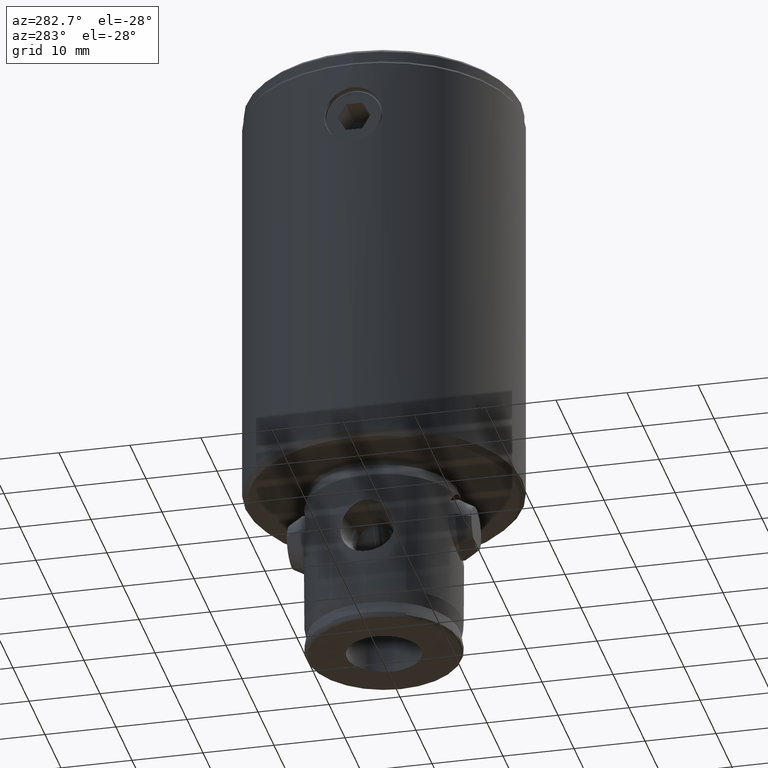
[diagram: clean part render]
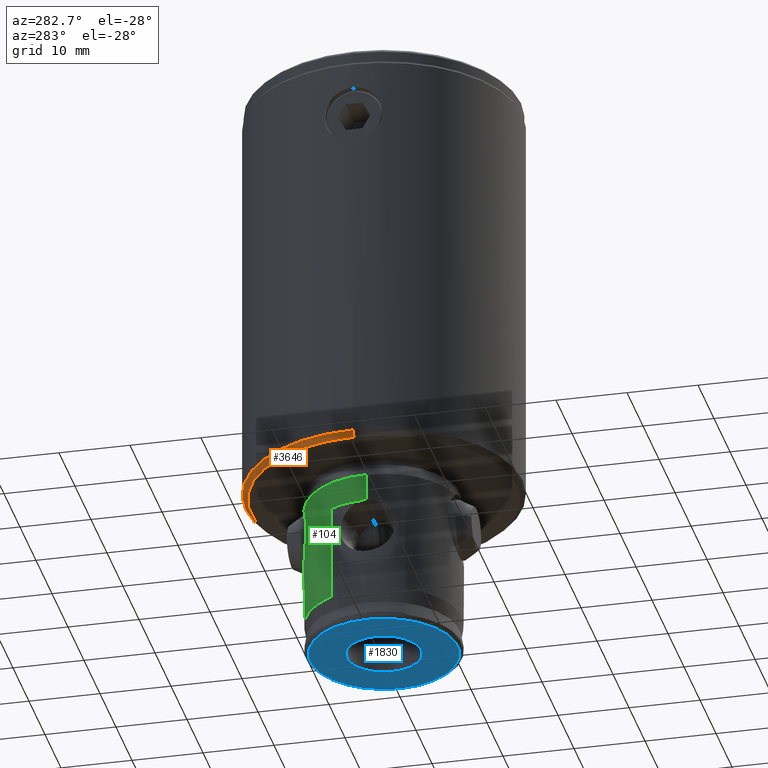
[diagram: same view with three faces highlighted in distinct colors, each labeled with its STEP entity id]
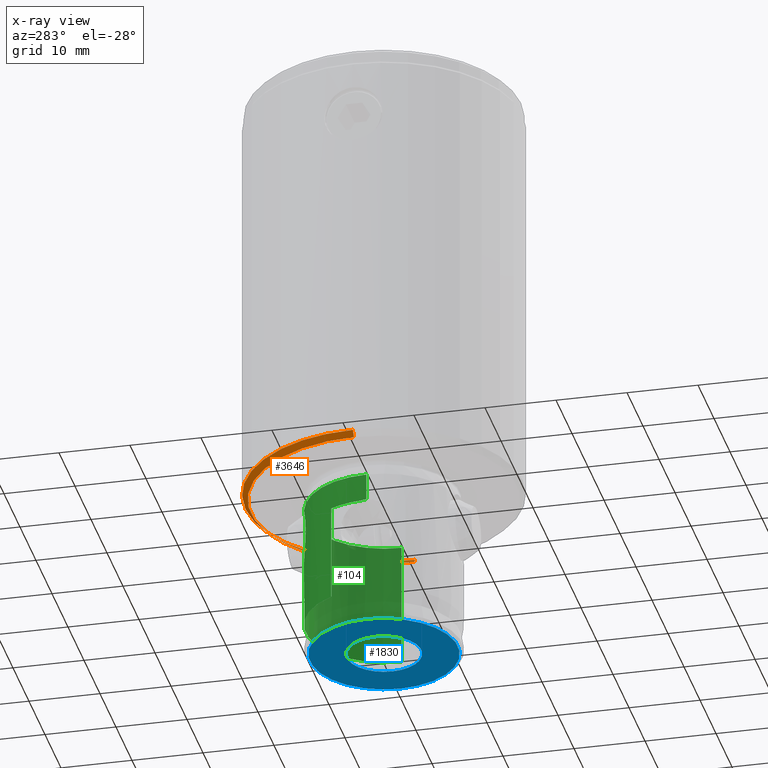
[diagram: x-ray of the same camera — body ghosted, the three highlighted faces saturated]
A machine part, auxiliary view with three faces highlighted in distinct colors.
The next image is the same camera in x-ray (body ghosted, the three faces saturated) — at least one of them is partly hidden behind the body in this view.
Their STEP definitions:

[orange] entity #3646 — the highlighted conical surface has half-angle 45 deg.
#240 = CARTESIAN_POINT ( 'NONE',  ( 18.75000000000000000, 2.296212748401287200E-015, 60.00000000000000000 ) ) ;
#295 = ORIENTED_EDGE ( 'NONE', *, *, #3892, .F. ) ;
#319 = LINE ( 'NONE', #240, #3121 ) ;
#345 = DIRECTION ( 'NONE',  ( -1.000000000000000000, 0.0000000000000000000, 0.0000000000000000000 ) ) ;
#462 = DIRECTION ( 'NONE',  ( -0.7071067811865410200, 0.0000000000000000000, -0.7071067811865540100 ) ) ;
#733 = AXIS2_PLACEMENT_3D ( 'NONE', #1792, #3261, #345 ) ;
#751 = VERTEX_POINT ( 'NONE', #2579 ) ;
#897 = CARTESIAN_POINT ( 'NONE',  ( 19.50000000000000000, 2.388061258337338900E-015, 59.24999999999998600 ) ) ;
#1018 = EDGE_CURVE ( 'NONE', #2460, #2475, #2023, .T. ) ;
#1129 = AXIS2_PLACEMENT_3D ( 'NONE', #4130, #1930, #4503 ) ;
#1328 = DIRECTION ( 'NONE',  ( 0.7071067811865410200, 8.659560562354854000E-017, -0.7071067811865540100 ) ) ;
#1616 = CARTESIAN_POINT ( 'NONE',  ( 18.75000000000000000, 2.342137003369313300E-015, 60.00000000000000000 ) ) ;
#1792 = CARTESIAN_POINT ( 'NONE',  ( 0.0000000000000000000, 0.0000000000000000000, 60.00000000000000000 ) ) ;
#1930 = DIRECTION ( 'NONE',  ( -0.0000000000000000000, -0.0000000000000000000, -1.000000000000000000 ) ) ;
#1957 = DIRECTION ( 'NONE',  ( 1.000000000000000000, 0.0000000000000000000, 0.0000000000000000000 ) ) ;
#2023 = CIRCLE ( 'NONE', #4020, 18.75000000000000000 ) ;
#2106 = ORIENTED_EDGE ( 'NONE', *, *, #4699, .T. ) ;
#2210 = CONICAL_SURFACE ( 'NONE', #733, 18.75000000000000000, 0.7853981633974391800 ) ;
#2303 = EDGE_CURVE ( 'NONE', #2475, #751, #3217, .T. ) ;
#2460 = VERTEX_POINT ( 'NONE', #1616 ) ;
#2475 = VERTEX_POINT ( 'NONE', #4574 ) ;
#2579 = CARTESIAN_POINT ( 'NONE',  ( -19.50000000000000000, 0.0000000000000000000, 59.24999999999998600 ) ) ;
#2790 = EDGE_LOOP ( 'NONE', ( #2957, #2106, #295, #3197 ) ) ;
#2957 = ORIENTED_EDGE ( 'NONE', *, *, #1018, .F. ) ;
#2989 = CARTESIAN_POINT ( 'NONE',  ( -18.75000000000000000, 0.0000000000000000000, 60.00000000000000000 ) ) ;
#3061 = CIRCLE ( 'NONE', #1129, 19.50000000000000000 ) ;
#3104 = CARTESIAN_POINT ( 'NONE',  ( 0.0000000000000000000, 0.0000000000000000000, 60.00000000000000000 ) ) ;
#3112 = VECTOR ( 'NONE', #462, 1000.000000000000000 ) ;
#3121 = VECTOR ( 'NONE', #1328, 1000.000000000000000 ) ;
#3186 = VERTEX_POINT ( 'NONE', #897 ) ;
#3193 = FACE_OUTER_BOUND ( 'NONE', #2790, .T. ) ;
#3197 = ORIENTED_EDGE ( 'NONE', *, *, #2303, .F. ) ;
#3217 = LINE ( 'NONE', #2989, #3112 ) ;
#3261 = DIRECTION ( 'NONE',  ( 0.0000000000000000000, 0.0000000000000000000, -1.000000000000000000 ) ) ;
#3554 = DIRECTION ( 'NONE',  ( 0.0000000000000000000, 0.0000000000000000000, 1.000000000000000000 ) ) ;
#3646 = ADVANCED_FACE ( 'NONE', ( #3193 ), #2210, .T. ) ;
#3892 = EDGE_CURVE ( 'NONE', #751, #3186, #3061, .T. ) ;
#4020 = AXIS2_PLACEMENT_3D ( 'NONE', #3104, #3554, #1957 ) ;
#4130 = CARTESIAN_POINT ( 'NONE',  ( 0.0000000000000000000, 0.0000000000000000000, 59.24999999999998600 ) ) ;
#4503 = DIRECTION ( 'NONE',  ( 1.000000000000000000, 0.0000000000000000000, 0.0000000000000000000 ) ) ;
#4574 = CARTESIAN_POINT ( 'NONE',  ( -18.75000000000000000, 0.0000000000000000000, 60.00000000000000000 ) ) ;
#4699 = EDGE_CURVE ( 'NONE', #2460, #3186, #319, .T. ) ;

[blue] entity #1830 — the highlighted planar face has unit normal (-0, 0, -1).
#168 = VERTEX_POINT ( 'NONE', #4489 ) ;
#339 = ORIENTED_EDGE ( 'NONE', *, *, #3920, .F. ) ;
#424 = AXIS2_PLACEMENT_3D ( 'NONE', #3131, #955, #3516 ) ;
#497 = CARTESIAN_POINT ( 'NONE',  ( 0.0000000000000000000, 0.0000000000000000000, 83.99999999999998600 ) ) ;
#542 = DIRECTION ( 'NONE',  ( 0.0000000000000000000, 0.0000000000000000000, 1.000000000000000000 ) ) ;
#635 = CARTESIAN_POINT ( 'NONE',  ( 10.40839202169003000, 1.310885938212720900E-015, 83.99999999999998600 ) ) ;
#670 = CARTESIAN_POINT ( 'NONE',  ( -10.40839202169003000, 0.0000000000000000000, 83.99999999999998600 ) ) ;
#780 = CIRCLE ( 'NONE', #1387, 5.249999999999988500 ) ;
#859 = DIRECTION ( 'NONE',  ( 1.000000000000000000, 0.0000000000000000000, 0.0000000000000000000 ) ) ;
#934 = DIRECTION ( 'NONE',  ( 1.000000000000000000, 0.0000000000000000000, 0.0000000000000000000 ) ) ;
#955 = DIRECTION ( 'NONE',  ( 0.0000000000000000000, 0.0000000000000000000, 1.000000000000000000 ) ) ;
#957 = AXIS2_PLACEMENT_3D ( 'NONE', #2717, #542, #3075 ) ;
#1079 = VERTEX_POINT ( 'NONE', #670 ) ;
#1252 = ORIENTED_EDGE ( 'NONE', *, *, #2736, .F. ) ;
#1387 = AXIS2_PLACEMENT_3D ( 'NONE', #497, #3028, #859 ) ;
#1639 = CARTESIAN_POINT ( 'NONE',  ( 0.0000000000000000000, 0.0000000000000000000, 83.99999999999998600 ) ) ;
#1743 = FACE_OUTER_BOUND ( 'NONE', #2755, .T. ) ;
#1830 = ADVANCED_FACE ( 'NONE', ( #2924, #1743 ), #2752, .T. ) ;
#1993 = DIRECTION ( 'NONE',  ( 1.000000000000000000, 0.0000000000000000000, 0.0000000000000000000 ) ) ;
#2002 = ORIENTED_EDGE ( 'NONE', *, *, #2005, .T. ) ;
#2005 = EDGE_CURVE ( 'NONE', #1079, #2811, #3765, .T. ) ;
#2289 = VERTEX_POINT ( 'NONE', #4336 ) ;
#2439 = EDGE_CURVE ( 'NONE', #2811, #1079, #4082, .T. ) ;
#2717 = CARTESIAN_POINT ( 'NONE',  ( 0.0000000000000000000, 0.0000000000000000000, 83.99999999999998600 ) ) ;
#2736 = EDGE_CURVE ( 'NONE', #2289, #168, #4420, .T. ) ;
#2752 = PLANE ( 'NONE',  #2758 ) ;
#2755 = EDGE_LOOP ( 'NONE', ( #2002, #3231 ) ) ;
#2758 = AXIS2_PLACEMENT_3D ( 'NONE', #4218, #3110, #934 ) ;
#2811 = VERTEX_POINT ( 'NONE', #635 ) ;
#2924 = FACE_BOUND ( 'NONE', #3203, .T. ) ;
#3028 = DIRECTION ( 'NONE',  ( 0.0000000000000000000, 0.0000000000000000000, 1.000000000000000000 ) ) ;
#3075 = DIRECTION ( 'NONE',  ( 1.000000000000000000, 0.0000000000000000000, 0.0000000000000000000 ) ) ;
#3110 = DIRECTION ( 'NONE',  ( 0.0000000000000000000, 0.0000000000000000000, 1.000000000000000000 ) ) ;
#3131 = CARTESIAN_POINT ( 'NONE',  ( 0.0000000000000000000, 0.0000000000000000000, 83.99999999999998600 ) ) ;
#3203 = EDGE_LOOP ( 'NONE', ( #339, #1252 ) ) ;
#3231 = ORIENTED_EDGE ( 'NONE', *, *, #2439, .T. ) ;
#3516 = DIRECTION ( 'NONE',  ( 1.000000000000000000, 0.0000000000000000000, 0.0000000000000000000 ) ) ;
#3765 = CIRCLE ( 'NONE', #957, 10.40839202169003000 ) ;
#3920 = EDGE_CURVE ( 'NONE', #168, #2289, #780, .T. ) ;
#4026 = AXIS2_PLACEMENT_3D ( 'NONE', #1639, #4201, #1993 ) ;
#4082 = CIRCLE ( 'NONE', #4026, 10.40839202169003000 ) ;
#4201 = DIRECTION ( 'NONE',  ( 0.0000000000000000000, 0.0000000000000000000, 1.000000000000000000 ) ) ;
#4218 = CARTESIAN_POINT ( 'NONE',  ( 0.0000000000000000000, 0.0000000000000000000, 83.99999999999998600 ) ) ;
#4336 = CARTESIAN_POINT ( 'NONE',  ( -5.249999999999988500, 6.429395695523590300E-016, 83.99999999999998600 ) ) ;
#4420 = CIRCLE ( 'NONE', #424, 5.249999999999988500 ) ;
#4489 = CARTESIAN_POINT ( 'NONE',  ( 5.249999999999988500, 0.0000000000000000000, 83.99999999999998600 ) ) ;

[green] entity #104 — the highlighted cylindrical surface (partial cylindrical patch) has radius 11 mm, axis along (0, 0, 1).
#31 = VECTOR ( 'NONE', #2734, 1000.000000000000000 ) ;
#33 = CARTESIAN_POINT ( 'NONE',  ( -4.473245270091969600, 10.05075226166034200, 64.82087978708200600 ) ) ;
#39 = VERTEX_POINT ( 'NONE', #1488 ) ;
#89 = CARTESIAN_POINT ( 'NONE',  ( -2.439577906776702900, 10.72837784936262100, 70.35832153894530400 ) ) ;
#104 = ADVANCED_FACE ( 'NONE', ( #1779 ), #702, .T. ) ;
#105 = CARTESIAN_POINT ( 'NONE',  ( -4.556288919254663000, 10.01201411918462400, 65.33335830747059000 ) ) ;
#140 = CARTESIAN_POINT ( 'NONE',  ( -2.631756059151182800, 10.68053650549076900, 61.79524911219963500 ) ) ;
#164 = CARTESIAN_POINT ( 'NONE',  ( 10.99695241310366000, 0.2973758084466155400, 65.65252359537387900 ) ) ;
#189 = CARTESIAN_POINT ( 'NONE',  ( 0.0000000000000000000, 0.0000000000000000000, 79.50000000000000000 ) ) ;
#287 = EDGE_CURVE ( 'NONE', #1674, #4340, #2337, .T. ) ;
#301 = CARTESIAN_POINT ( 'NONE',  ( 4.563456895335181500, 10.00874126988598100, 65.61082701546479300 ) ) ;
#316 = CARTESIAN_POINT ( 'NONE',  ( 1.997614349368690600, 10.81936557880324500, 70.63487722509111700 ) ) ;
#419 = CARTESIAN_POINT ( 'NONE',  ( -11.00000000000001100, 0.0000000000000000000, 79.50000000000000000 ) ) ;
#477 = CARTESIAN_POINT ( 'NONE',  ( -3.031026824551829300, 10.57602324519832100, 69.85865004430114300 ) ) ;
#494 = CARTESIAN_POINT ( 'NONE',  ( -3.364302705878028400, 10.47445986397923300, 62.50904561711463700 ) ) ;
#535 = ORIENTED_EDGE ( 'NONE', *, *, #1798, .F. ) ;
#564 = DIRECTION ( 'NONE',  ( 1.000000000000000000, 0.0000000000000000000, 0.0000000000000000000 ) ) ;
#603 = ORIENTED_EDGE ( 'NONE', *, *, #3956, .T. ) ;
#647 = CARTESIAN_POINT ( 'NONE',  ( 0.5215098820343713200, 10.99061502377314200, 71.11955586624657100 ) ) ;
#675 = CARTESIAN_POINT ( 'NONE',  ( 4.563266063690037700, 10.00887851290144000, 66.39229617508529200 ) ) ;
#687 = CARTESIAN_POINT ( 'NONE',  ( 1.287409194248698900, 10.92711111080013200, 70.94451240562401000 ) ) ;
#689 = EDGE_CURVE ( 'NONE', #4340, #3499, #2779, .T. ) ;
#702 = CYLINDRICAL_SURFACE ( 'NONE', #2060, 11.00000000000000000 ) ;
#716 = CARTESIAN_POINT ( 'NONE',  ( 11.00000000000000000, 3.704076008921244500E-018, 65.64336602338819700 ) ) ;
#749 = VERTEX_POINT ( 'NONE', #419 ) ;
#764 = CARTESIAN_POINT ( 'NONE',  ( -4.523525409397690200, 10.02782361534787000, 66.90425269670879500 ) ) ;
#789 = ORIENTED_EDGE ( 'NONE', *, *, #1512, .T. ) ;
#802 = CARTESIAN_POINT ( 'NONE',  ( -3.940109958291326400, 10.27106975102746700, 68.61867348586359600 ) ) ;
#834 = CARTESIAN_POINT ( 'NONE',  ( -0.2618421428205383600, 11.00000000000000400, 71.14489291724395100 ) ) ;
#835 = EDGE_CURVE ( 'NONE', #1371, #3318, #937, .T. ) ;
#858 = CARTESIAN_POINT ( 'NONE',  ( -3.017439004901628900, 10.57959847964885100, 62.12807360721578900 ) ) ;
#937 = B_SPLINE_CURVE_WITH_KNOTS ( 'NONE', 3,
 ( #1572, #834, #2296, #3739, #2667, #3389, #4150, #89, #4109, #477, #1542, #2205, #3410, #802, #3756, #3027, #4129, #764, #2647, #105, #33, #2575, #2971, #1222, #3792, #1890, #494, #858, #2322, #140 ),
 .UNSPECIFIED., .F., .F.,
 ( 4, 2, 2, 2, 2, 2, 2, 2, 2, 2, 2, 2, 2, 2, 4 ),
 ( 0.01899740961911089800, 0.01977558630565579400, 0.02055376299220068600, 0.02133193967874558200, 0.02211011636529047800, 0.02288829305183537300, 0.02366646973838026600, 0.02444464642492516500, 0.02522282311147006100, 0.02677917648455989000, 0.02833552985764972400, 0.02911370654419464000, 0.02989188323073955400, 0.03067005991728447000, 0.03144823660382938700 ),
 .UNSPECIFIED. ) ;
#1034 = CARTESIAN_POINT ( 'NONE',  ( 4.456514239896857400, 10.05706001590339800, 67.17111715330060000 ) ) ;
#1107 = LINE ( 'NONE', #2367, #31 ) ;
#1114 = CARTESIAN_POINT ( 'NONE',  ( 10.98515707845205500, 0.5896767837130771900, 65.68828066599464000 ) ) ;
#1214 = CARTESIAN_POINT ( 'NONE',  ( 11.00000000000000000, 3.704076008921244500E-018, 65.64336602338819700 ) ) ;
#1222 = CARTESIAN_POINT ( 'NONE',  ( -3.931501398514059000, 10.27409901670120200, 63.36525342321139200 ) ) ;
#1371 = VERTEX_POINT ( 'NONE', #2732 ) ;
#1373 = VERTEX_POINT ( 'NONE', #1988 ) ;
#1403 = CARTESIAN_POINT ( 'NONE',  ( 4.245831230444319500, 10.14810951136943200, 67.92085756956620900 ) ) ;
#1488 = CARTESIAN_POINT ( 'NONE',  ( 9.666307464590612900, 5.250000000000000900, 79.50000000000000000 ) ) ;
#1512 = EDGE_CURVE ( 'NONE', #39, #3499, #3890, .T. ) ;
#1542 = CARTESIAN_POINT ( 'NONE',  ( -3.207230191136127000, 10.52343060633346600, 69.67327376362330000 ) ) ;
#1572 = CARTESIAN_POINT ( 'NONE',  ( -5.705521081681208000E-015, 11.00000000000003000, 71.14489291724400700 ) ) ;
#1627 = VERTEX_POINT ( 'NONE', #3606 ) ;
#1634 = AXIS2_PLACEMENT_3D ( 'NONE', #1995, #4577, #2373 ) ;
#1645 = CARTESIAN_POINT ( 'NONE',  ( 0.0000000000000000000, 0.0000000000000000000, 83.99999999999998600 ) ) ;
#1648 = VECTOR ( 'NONE', #2298, 1000.000000000000000 ) ;
#1674 = VERTEX_POINT ( 'NONE', #716 ) ;
#1731 = CARTESIAN_POINT ( 'NONE',  ( 9.666307464590600400, 5.250000000000000900, 83.99999999999998600 ) ) ;
#1751 = CARTESIAN_POINT ( 'NONE',  ( 3.949324296229815600, 10.27096629488168300, 63.35834774628215600 ) ) ;
#1763 = CARTESIAN_POINT ( 'NONE',  ( 3.934151967783729600, 10.27337308035872500, 68.63015476040924100 ) ) ;
#1779 = FACE_OUTER_BOUND ( 'NONE', #4732, .T. ) ;
#1798 = EDGE_CURVE ( 'NONE', #749, #3924, #1107, .T. ) ;
#1812 = CIRCLE ( 'NONE', #4003, 11.00000000000000000 ) ;
#1829 = CARTESIAN_POINT ( 'NONE',  ( 11.00000000000000000, 0.1482946709201480900, 65.64336602338818200 ) ) ;
#1890 = CARTESIAN_POINT ( 'NONE',  ( -3.523644565577772600, 10.42144076689737300, 62.71470832381930200 ) ) ;
#1988 = CARTESIAN_POINT ( 'NONE',  ( 11.00000000000000000, 1.347111479062088400E-015, 61.79524911219963500 ) ) ;
#1995 = CARTESIAN_POINT ( 'NONE',  ( 0.0000000000000000000, 0.0000000000000000000, 61.79524911219963500 ) ) ;
#2000 = DIRECTION ( 'NONE',  ( 0.0000000000000000000, 0.0000000000000000000, -1.000000000000000000 ) ) ;
#2060 = AXIS2_PLACEMENT_3D ( 'NONE', #1645, #2000, #4430 ) ;
#2073 = CIRCLE ( 'NONE', #3705, 11.00000000000001100 ) ;
#2094 = CARTESIAN_POINT ( 'NONE',  ( 2.631756059151177900, 10.68053650549077300, 61.79524911219963500 ) ) ;
#2108 = CARTESIAN_POINT ( 'NONE',  ( 4.398139480298800300, 10.08281298249147900, 64.57720161405454500 ) ) ;
#2113 = CARTESIAN_POINT ( 'NONE',  ( 0.0000000000000000000, 0.0000000000000000000, 61.79524911219963500 ) ) ;
#2120 = CARTESIAN_POINT ( 'NONE',  ( 3.217877989432171000, 10.52638077028903900, 69.69315712104311400 ) ) ;
#2145 = CARTESIAN_POINT ( 'NONE',  ( -5.705521081681208000E-015, 11.00000000000003000, 71.14489291724400700 ) ) ;
#2205 = CARTESIAN_POINT ( 'NONE',  ( -3.530986450189559800, 10.41926350150665900, 69.27555727347930800 ) ) ;
#2208 = DIRECTION ( 'NONE',  ( 1.000000000000000000, 0.0000000000000000000, 0.0000000000000000000 ) ) ;
#2296 = CARTESIAN_POINT ( 'NONE',  ( -0.5265045371712497900, 10.99037514723365100, 71.11890431623513100 ) ) ;
#2298 = DIRECTION ( 'NONE',  ( 0.0000000000000000000, 0.0000000000000000000, -1.000000000000000000 ) ) ;
#2322 = CARTESIAN_POINT ( 'NONE',  ( -2.831249313779868900, 10.63138002525600400, 61.95359325727652300 ) ) ;
#2337 = B_SPLINE_CURVE_WITH_KNOTS ( 'NONE', 3,
 ( #1214, #1829, #164, #1114, #3014, #3396 ),
 .UNSPECIFIED., .F., .F.,
 ( 4, 2, 4 ),
 ( 0.004081942113363981300, 0.004520058541744880300, 0.004958174970125779300 ),
 .UNSPECIFIED. ) ;
#2367 = CARTESIAN_POINT ( 'NONE',  ( -11.00000000000000000, 0.0000000000000000000, 83.99999999999998600 ) ) ;
#2373 = DIRECTION ( 'NONE',  ( 1.000000000000000000, 0.0000000000000000000, 0.0000000000000000000 ) ) ;
#2484 = CARTESIAN_POINT ( 'NONE',  ( 4.539658018418657900, 10.01965908383428600, 65.34714032155174800 ) ) ;
#2493 = DIRECTION ( 'NONE',  ( 1.000000000000000000, 0.0000000000000000000, 0.0000000000000000000 ) ) ;
#2499 = CARTESIAN_POINT ( 'NONE',  ( 2.431862253712104400, 10.73010627140134000, 70.36368284000693100 ) ) ;
#2575 = CARTESIAN_POINT ( 'NONE',  ( -4.244305899378211700, 10.14853454940273100, 64.07480463891870700 ) ) ;
#2639 = EDGE_CURVE ( 'NONE', #39, #749, #2073, .T. ) ;
#2647 = CARTESIAN_POINT ( 'NONE',  ( -4.581722753789215100, 10.00040059427047000, 66.38819712467231700 ) ) ;
#2667 = CARTESIAN_POINT ( 'NONE',  ( -1.287337657218266900, 10.92716664691081300, 70.94468426403092600 ) ) ;
#2668 = CARTESIAN_POINT ( 'NONE',  ( 0.0000000000000000000, 0.0000000000000000000, 65.74999999999998600 ) ) ;
#2732 = CARTESIAN_POINT ( 'NONE',  ( -5.705521081681208000E-015, 11.00000000000003000, 71.14489291724400700 ) ) ;
#2734 = DIRECTION ( 'NONE',  ( 0.0000000000000000000, 0.0000000000000000000, -1.000000000000000000 ) ) ;
#2735 = DIRECTION ( 'NONE',  ( 0.0000000000000000000, 0.0000000000000000000, 1.000000000000000000 ) ) ;
#2760 = CARTESIAN_POINT ( 'NONE',  ( -11.00000000000000000, 0.0000000000000000000, 61.79524911219963500 ) ) ;
#2779 = CIRCLE ( 'NONE', #2878, 11.00000000000000000 ) ;
#2847 = CARTESIAN_POINT ( 'NONE',  ( 4.575055220180286300, 10.00344492539455900, 66.13232151146900200 ) ) ;
#2856 = CARTESIAN_POINT ( 'NONE',  ( 1.769227708181933600, 10.85951255709984100, 70.75170247918974600 ) ) ;
#2869 = EDGE_CURVE ( 'NONE', #1627, #1371, #2956, .T. ) ;
#2878 = AXIS2_PLACEMENT_3D ( 'NONE', #2668, #4505, #2208 ) ;
#2956 = B_SPLINE_CURVE_WITH_KNOTS ( 'NONE', 3,
 ( #2094, #4673, #3948, #1751, #4320, #2108, #4686, #2484, #301, #2847, #675, #3212, #1034, #3600, #1403, #3960, #1763, #4339, #2120, #4700, #2499, #316, #2856, #687, #3226, #647, #4359, #2145 ),
 .UNSPECIFIED., .F., .F.,
 ( 4, 2, 2, 2, 2, 2, 2, 2, 2, 2, 2, 2, 2, 4 ),
 ( 0.006512075965532788300, 0.008072742672230031100, 0.009633409378927272300, 0.01041374273227591400, 0.01119407608562455300, 0.01197440943897319600, 0.01275474279232183600, 0.01353507614567047600, 0.01431540949901911900, 0.01587607620571639500, 0.01665640955906502000, 0.01743674291241364600, 0.01821707626576227200, 0.01899740961911089800 ),
 .UNSPECIFIED. ) ;
#2971 = CARTESIAN_POINT ( 'NONE',  ( -4.150131297949402900, 10.18774872389771100, 63.83060249311668600 ) ) ;
#3014 = CARTESIAN_POINT ( 'NONE',  ( 10.97641667811767300, 0.7339628926875316800, 65.71485859215916000 ) ) ;
#3027 = CARTESIAN_POINT ( 'NONE',  ( -4.249271921361354600, 10.14666545479236100, 67.91123467877443400 ) ) ;
#3212 = CARTESIAN_POINT ( 'NONE',  ( 4.504324806308031400, 10.03554205279033900, 66.91069953726953700 ) ) ;
#3226 = CARTESIAN_POINT ( 'NONE',  ( 1.032445923629996800, 10.95443501841272700, 71.02011995632763300 ) ) ;
#3318 = VERTEX_POINT ( 'NONE', #3723 ) ;
#3389 = CARTESIAN_POINT ( 'NONE',  ( -1.773316469175237900, 10.85889303166783600, 70.74992185436725800 ) ) ;
#3396 = CARTESIAN_POINT ( 'NONE',  ( 10.96502996948563800, 0.8764232814576522500, 65.74999999999998600 ) ) ;
#3410 = CARTESIAN_POINT ( 'NONE',  ( -3.679184457333146700, 10.36739803628740700, 69.06171016214837300 ) ) ;
#3499 = VERTEX_POINT ( 'NONE', #4242 ) ;
#3523 = ORIENTED_EDGE ( 'NONE', *, *, #3544, .T. ) ;
#3544 = EDGE_CURVE ( 'NONE', #1373, #1627, #1812, .T. ) ;
#3591 = CIRCLE ( 'NONE', #1634, 11.00000000000000000 ) ;
#3600 = CARTESIAN_POINT ( 'NONE',  ( 4.327173930856785600, 10.11338425582652100, 67.67566778532861300 ) ) ;
#3606 = CARTESIAN_POINT ( 'NONE',  ( 2.631756059151177900, 10.68053650549077300, 61.79524911219963500 ) ) ;
#3705 = AXIS2_PLACEMENT_3D ( 'NONE', #189, #2735, #564 ) ;
#3723 = CARTESIAN_POINT ( 'NONE',  ( -2.631756059151182800, 10.68053650549076900, 61.79524911219963500 ) ) ;
#3739 = CARTESIAN_POINT ( 'NONE',  ( -1.037275322897430500, 10.95397703161281000, 71.01885337280035100 ) ) ;
#3756 = CARTESIAN_POINT ( 'NONE',  ( -4.053863768263505000, 10.22630530844386200, 68.38856684486944500 ) ) ;
#3792 = CARTESIAN_POINT ( 'NONE',  ( -3.806494393214543000, 10.32148725314828400, 63.14204778191094600 ) ) ;
#3848 = ORIENTED_EDGE ( 'NONE', *, *, #2869, .T. ) ;
#3850 = ORIENTED_EDGE ( 'NONE', *, *, #2639, .F. ) ;
#3890 = LINE ( 'NONE', #1731, #4722 ) ;
#3924 = VERTEX_POINT ( 'NONE', #2760 ) ;
#3948 = CARTESIAN_POINT ( 'NONE',  ( 3.383917673851566800, 10.47086492148484300, 62.50309927462420500 ) ) ;
#3956 = EDGE_CURVE ( 'NONE', #3318, #3924, #3591, .T. ) ;
#3958 = EDGE_CURVE ( 'NONE', #1674, #1373, #4576, .T. ) ;
#3960 = CARTESIAN_POINT ( 'NONE',  ( 4.049711824104741200, 10.22795402971040700, 68.39744262416857600 ) ) ;
#4003 = AXIS2_PLACEMENT_3D ( 'NONE', #2113, #4692, #2493 ) ;
#4050 = ORIENTED_EDGE ( 'NONE', *, *, #3958, .T. ) ;
#4109 = CARTESIAN_POINT ( 'NONE',  ( -2.647532957601762800, 10.67848119034446200, 70.20120168699895700 ) ) ;
#4129 = CARTESIAN_POINT ( 'NONE',  ( -4.331370114743938500, 10.11158321315716600, 67.66191495781318100 ) ) ;
#4150 = CARTESIAN_POINT ( 'NONE',  ( -2.003194630347380200, 10.81835675668328100, 70.63191873270389500 ) ) ;
#4204 = CARTESIAN_POINT ( 'NONE',  ( 11.00000000000000000, 1.347111479062088400E-015, 83.99999999999998600 ) ) ;
#4242 = CARTESIAN_POINT ( 'NONE',  ( 9.666307464590600400, 5.250000000000000900, 65.74999999999998600 ) ) ;
#4302 = DIRECTION ( 'NONE',  ( 0.0000000000000000000, 0.0000000000000000000, -1.000000000000000000 ) ) ;
#4320 = CARTESIAN_POINT ( 'NONE',  ( 4.171516966771329200, 10.17965816263914300, 63.83548137185596300 ) ) ;
#4339 = CARTESIAN_POINT ( 'NONE',  ( 3.538574623761206800, 10.41909181490865800, 69.29761004735159700 ) ) ;
#4340 = VERTEX_POINT ( 'NONE', #4477 ) ;
#4359 = CARTESIAN_POINT ( 'NONE',  ( 0.2625678215346118300, 11.00000000000001200, 71.14489291724397900 ) ) ;
#4430 = DIRECTION ( 'NONE',  ( -1.000000000000000000, 0.0000000000000000000, 0.0000000000000000000 ) ) ;
#4477 = CARTESIAN_POINT ( 'NONE',  ( 10.96502996948563800, 0.8764232814576522500, 65.74999999999998600 ) ) ;
#4505 = DIRECTION ( 'NONE',  ( 0.0000000000000000000, 0.0000000000000000000, 1.000000000000000000 ) ) ;
#4533 = ORIENTED_EDGE ( 'NONE', *, *, #689, .F. ) ;
#4576 = LINE ( 'NONE', #4204, #1648 ) ;
#4577 = DIRECTION ( 'NONE',  ( 0.0000000000000000000, 0.0000000000000000000, 1.000000000000000000 ) ) ;
#4613 = ORIENTED_EDGE ( 'NONE', *, *, #287, .F. ) ;
#4618 = ORIENTED_EDGE ( 'NONE', *, *, #835, .T. ) ;
#4673 = CARTESIAN_POINT ( 'NONE',  ( 3.034046533780094800, 10.58140942572290100, 62.11455986481762900 ) ) ;
#4686 = CARTESIAN_POINT ( 'NONE',  ( 4.456758374016968300, 10.05680704180434800, 64.83000170470212700 ) ) ;
#4692 = DIRECTION ( 'NONE',  ( 0.0000000000000000000, 0.0000000000000000000, 1.000000000000000000 ) ) ;
#4700 = CARTESIAN_POINT ( 'NONE',  ( 2.639136528022191500, 10.68058126252755400, 70.20797678512731500 ) ) ;
#4722 = VECTOR ( 'NONE', #4302, 1000.000000000000000 ) ;
#4732 = EDGE_LOOP ( 'NONE', ( #4613, #4050, #3523, #3848, #4618, #603, #535, #3850, #789, #4533 ) ) ;